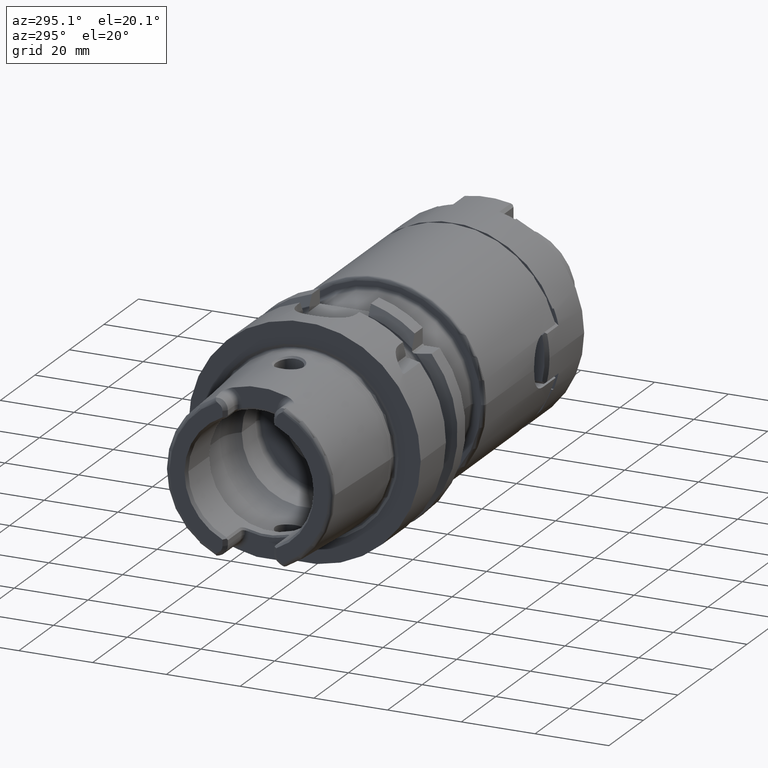
[diagram: clean part render]
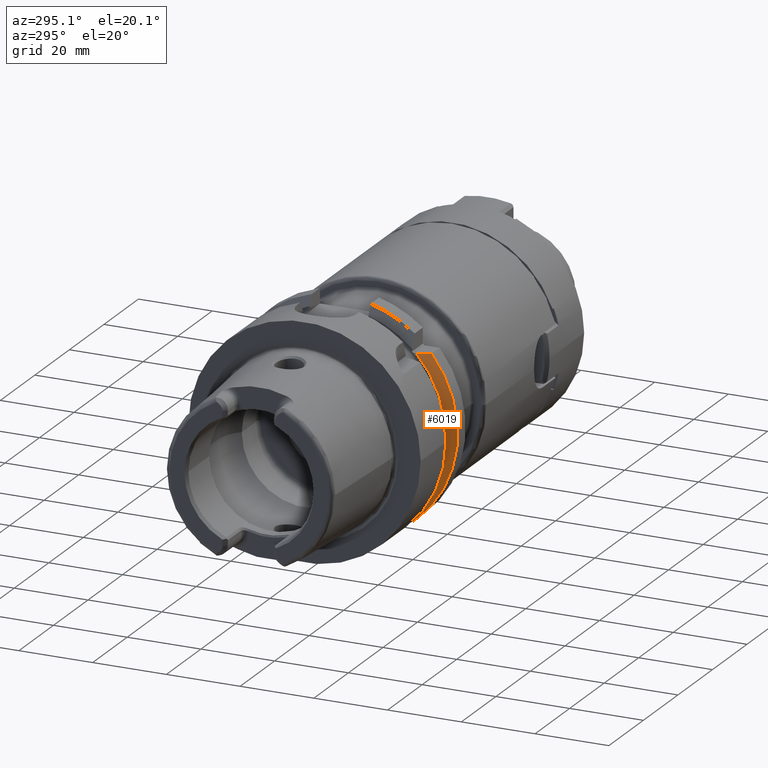
[diagram: same view with one face highlighted and labeled with its STEP entity id]
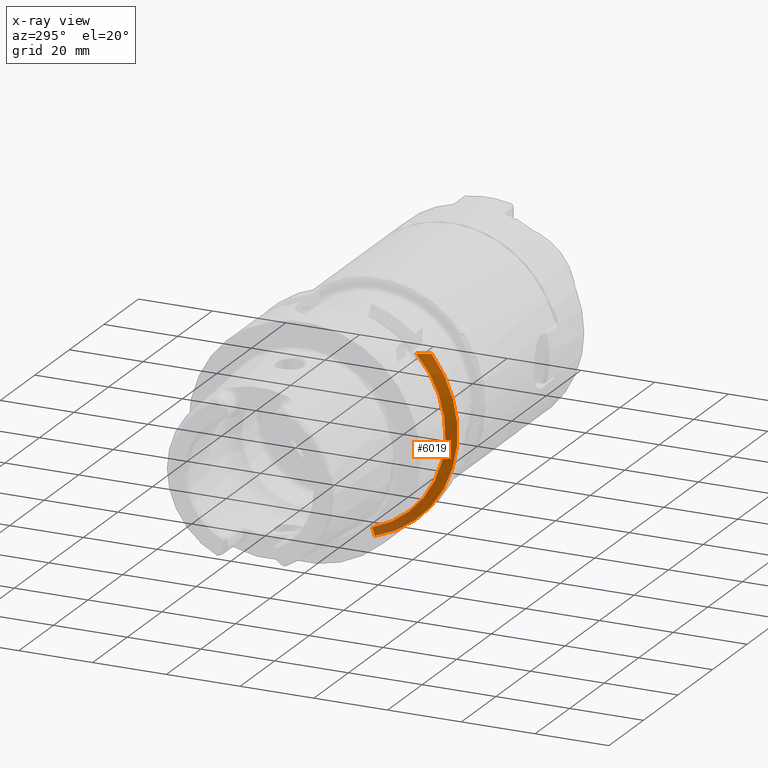
[diagram: x-ray of the same camera — body ghosted, the highlighted face saturated]
A machine part, auxiliary view. The second image highlights one B-rep face of the part: STEP entity #6019.
The next image is the same camera in x-ray: the body ghosted, the highlighted face saturated — about 14% of this face is hidden behind the body in this view.
In plain terms, the highlighted conical surface has half-angle 60 deg.
Its self-contained STEP definition (entity closure, byte-faithful):
#2223=CARTESIAN_POINT('',(1.9875E1,-2.100115501712E1,1.985E1));
#2224=CARTESIAN_POINT('',(2.002615778083E1,-2.136140971936E1,1.985E1));
#2225=CARTESIAN_POINT('',(2.033884699379E1,-2.209786160622E1,1.985E1));
#2226=CARTESIAN_POINT('',(2.083744118214E1,-2.324577082409E1,1.985E1));
#2227=CARTESIAN_POINT('',(2.119367380645E1,-2.404863363206E1,1.985E1));
#2228=CARTESIAN_POINT('',(2.137749907476E1,-2.445868966237E1,1.985E1));
#2230=CARTESIAN_POINT('',(2.137749907476E1,0.E0,0.E0));
#2231=DIRECTION('',(1.E0,0.E0,0.E0));
#2232=DIRECTION('',(0.E0,-7.764663384879E-1,6.301587301587E-1));
#2233=AXIS2_PLACEMENT_3D('',#2230,#2231,#2232);
#2235=CARTESIAN_POINT('',(1.9875E1,-9.0175E0,-2.745461174016E1));
#2236=CARTESIAN_POINT('',(2.003399901875E1,-9.0175E0,-2.774448053791E1));
#2237=CARTESIAN_POINT('',(2.035729051151E1,-9.0175E0,-2.833297398512E1));
#2238=CARTESIAN_POINT('',(2.085789481016E1,-9.0175E0,-2.924158789478E1));
#2239=CARTESIAN_POINT('',(2.120250873981E1,-9.0175E0,-2.986536377611E1));
#2240=CARTESIAN_POINT('',(2.137749907476E1,-9.0175E0,-3.018169467989E1));
#2242=CARTESIAN_POINT('',(1.9875E1,0.E0,0.E0));
#2243=DIRECTION('',(-1.E0,0.E0,0.E0));
#2244=DIRECTION('',(0.E0,-3.120501867909E-1,-9.500656192726E-1));
#2245=AXIS2_PLACEMENT_3D('',#2242,#2243,#2244);
#3440=CARTESIAN_POINT('',(1.9875E1,-9.0175E0,-2.745461174016E1));
#3442=VERTEX_POINT('',#3440);
#3445=VERTEX_POINT('',#2240);
#3452=CARTESIAN_POINT('',(2.137749907476E1,-2.445868966237E1,1.985E1));
#3454=VERTEX_POINT('',#3452);
#3468=CARTESIAN_POINT('',(1.9875E1,-2.100115501712E1,1.985E1));
#3470=VERTEX_POINT('',#3468);
#6005=CARTESIAN_POINT('',(2.062624953738E1,0.E0,0.E0));
#6006=DIRECTION('',(1.E0,0.E0,0.E0));
#6007=DIRECTION('',(0.E0,-1.E0,0.E0));
#6008=AXIS2_PLACEMENT_3D('',#6005,#6006,#6007);
#6009=CONICAL_SURFACE('',#6008,3.019879763210E1,6.E1);
#6011=ORIENTED_EDGE('',*,*,#6010,.T.);
#6012=ORIENTED_EDGE('',*,*,#5950,.T.);
#6014=ORIENTED_EDGE('',*,*,#6013,.F.);
#6016=ORIENTED_EDGE('',*,*,#6015,.T.);
#6017=EDGE_LOOP('',(#6011,#6012,#6014,#6016));
#6018=FACE_OUTER_BOUND('',#6017,.F.);
#6019=ADVANCED_FACE('',(#6018),#6009,.T.);
#2229=B_SPLINE_CURVE_WITH_KNOTS('',3,(#2223,#2224,#2225,#2226,#2227,#2228),
.UNSPECIFIED.,.F.,.F.,(4,1,1,4),(0.E0,3.333333333333E-1,6.666666666667E-1,1.E0),
.UNSPECIFIED.);
#2234=CIRCLE('',#2233,3.15E1);
#2241=B_SPLINE_CURVE_WITH_KNOTS('',3,(#2235,#2236,#2237,#2238,#2239,#2240),
.UNSPECIFIED.,.F.,.F.,(4,1,1,4),(0.E0,3.333333333333E-1,6.666666666667E-1,1.E0),
.UNSPECIFIED.);
#2246=CIRCLE('',#2245,2.889759526419E1);
#5950=EDGE_CURVE('',#3454,#3445,#2234,.T.);
#6010=EDGE_CURVE('',#3470,#3454,#2229,.T.);
#6013=EDGE_CURVE('',#3442,#3445,#2241,.T.);
#6015=EDGE_CURVE('',#3442,#3470,#2246,.T.);